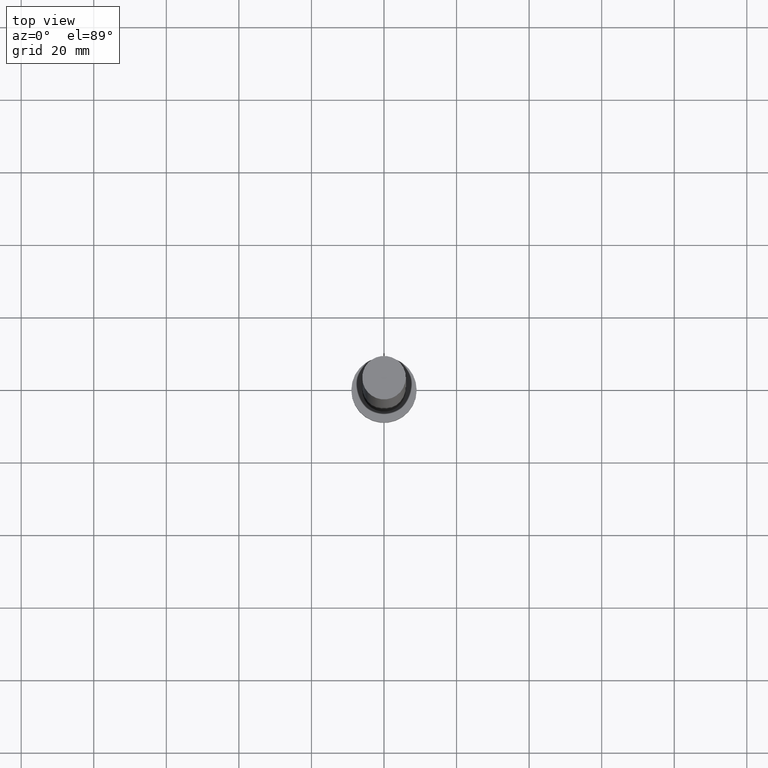
[diagram: clean part render]
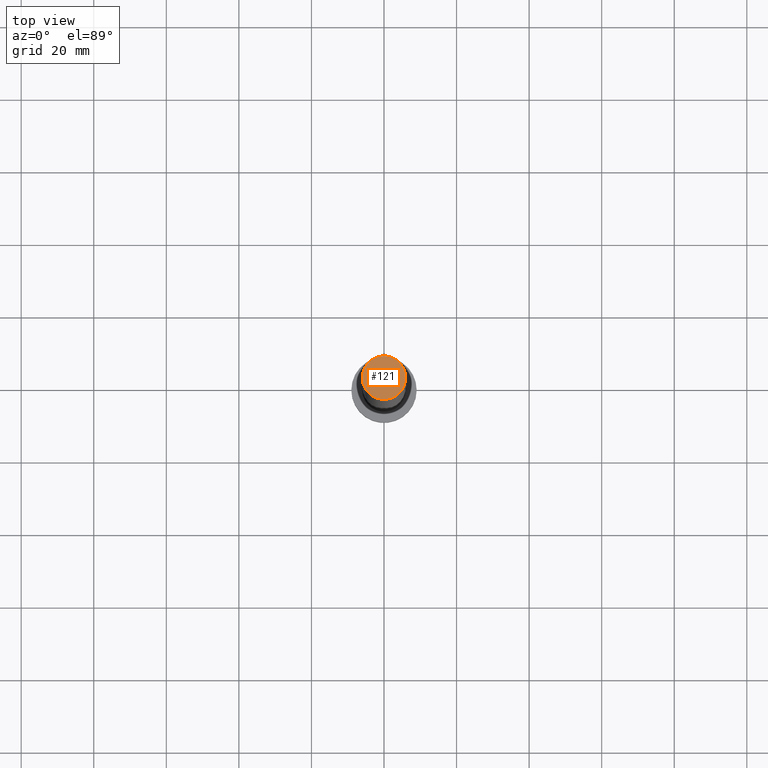
[diagram: same view with one face highlighted and labeled with its STEP entity id]
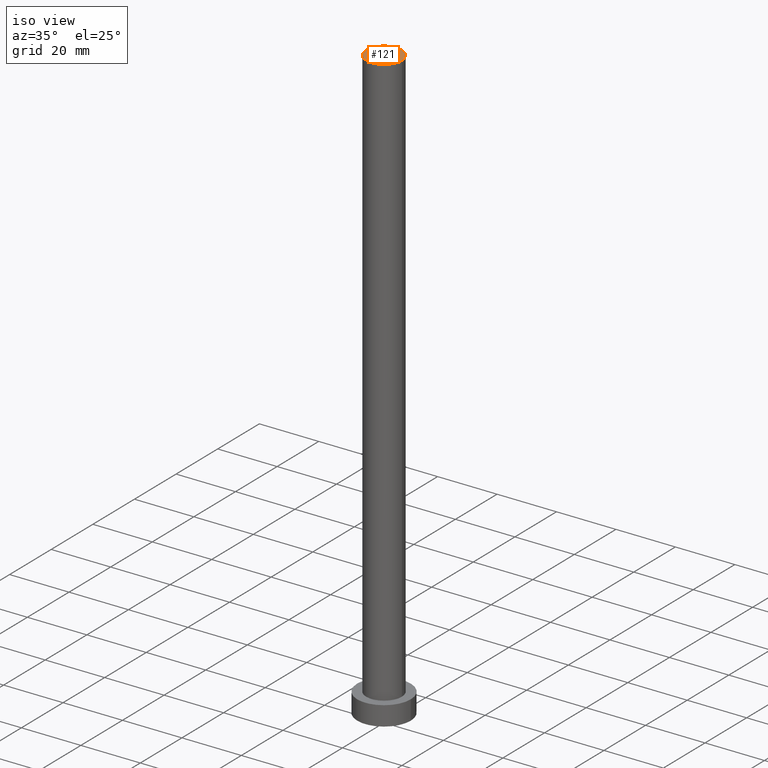
[diagram: same view with one face highlighted and labeled with its STEP entity id]
A machine part, top view. The second image highlights one B-rep face of the part: STEP entity #121.
A second angle (iso view) of the same face is appended — the face is thin or edge-on in the first view.
In plain terms, the highlighted planar face has unit normal (0, 0, 1).
Its self-contained STEP definition (entity closure, byte-faithful):
#14 = DIRECTION ( 'NONE',  ( 0.000000000000000000, 0.000000000000000000, 1.000000000000000000 ) ) ;
#16 = VERTEX_POINT ( 'NONE', #97 ) ;
#17 = DIRECTION ( 'NONE',  ( 0.000000000000000000, 0.000000000000000000, 1.000000000000000000 ) ) ;
#26 = CARTESIAN_POINT ( 'NONE',  ( -6.000000000000000888, 0.000000000000000000, 200.0000000000000000 ) ) ;
#45 = CIRCLE ( 'NONE', #188, 6.000000000000000888 ) ;
#61 = AXIS2_PLACEMENT_3D ( 'NONE', #161, #14, #248 ) ;
#65 = DIRECTION ( 'NONE',  ( 1.000000000000000000, 0.000000000000000000, 0.000000000000000000 ) ) ;
#77 = CARTESIAN_POINT ( 'NONE',  ( 0.000000000000000000, 0.000000000000000000, 200.0000000000000000 ) ) ;
#94 = CIRCLE ( 'NONE', #192, 6.000000000000000888 ) ;
#97 = CARTESIAN_POINT ( 'NONE',  ( 6.000000000000000888, 7.347880794884120722E-16, 200.0000000000000000 ) ) ;
#107 = CARTESIAN_POINT ( 'NONE',  ( 0.000000000000000000, 0.000000000000000000, 200.0000000000000000 ) ) ;
#113 = DIRECTION ( 'NONE',  ( 0.000000000000000000, 0.000000000000000000, 1.000000000000000000 ) ) ;
#121 = ADVANCED_FACE ( 'NONE', ( #125 ), #200, .T. ) ;
#125 = FACE_OUTER_BOUND ( 'NONE', #145, .T. ) ;
#139 = ORIENTED_EDGE ( 'NONE', *, *, #166, .T. ) ;
#145 = EDGE_LOOP ( 'NONE', ( #167, #139 ) ) ;
#152 = DIRECTION ( 'NONE',  ( 1.000000000000000000, 0.000000000000000000, 0.000000000000000000 ) ) ;
#161 = CARTESIAN_POINT ( 'NONE',  ( 0.000000000000000000, 0.000000000000000000, 200.0000000000000000 ) ) ;
#166 = EDGE_CURVE ( 'NONE', #16, #174, #94, .T. ) ;
#167 = ORIENTED_EDGE ( 'NONE', *, *, #190, .T. ) ;
#174 = VERTEX_POINT ( 'NONE', #26 ) ;
#188 = AXIS2_PLACEMENT_3D ( 'NONE', #77, #113, #152 ) ;
#190 = EDGE_CURVE ( 'NONE', #174, #16, #45, .T. ) ;
#192 = AXIS2_PLACEMENT_3D ( 'NONE', #107, #17, #65 ) ;
#200 = PLANE ( 'NONE',  #61 ) ;
#248 = DIRECTION ( 'NONE',  ( 1.000000000000000000, 0.000000000000000000, -0.000000000000000000 ) ) ;